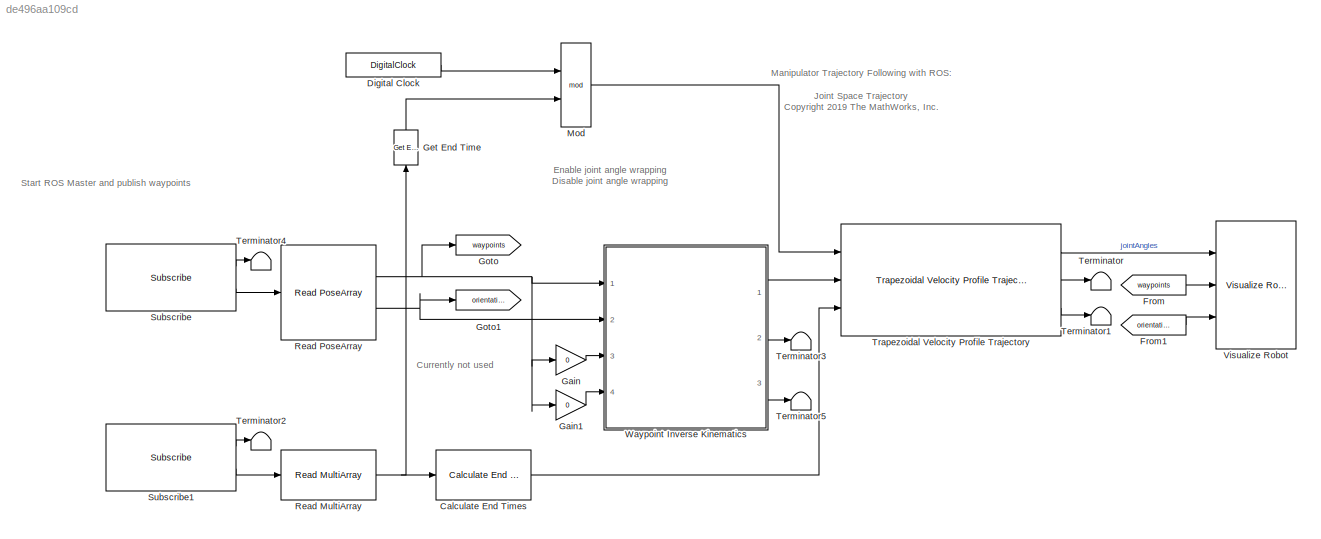
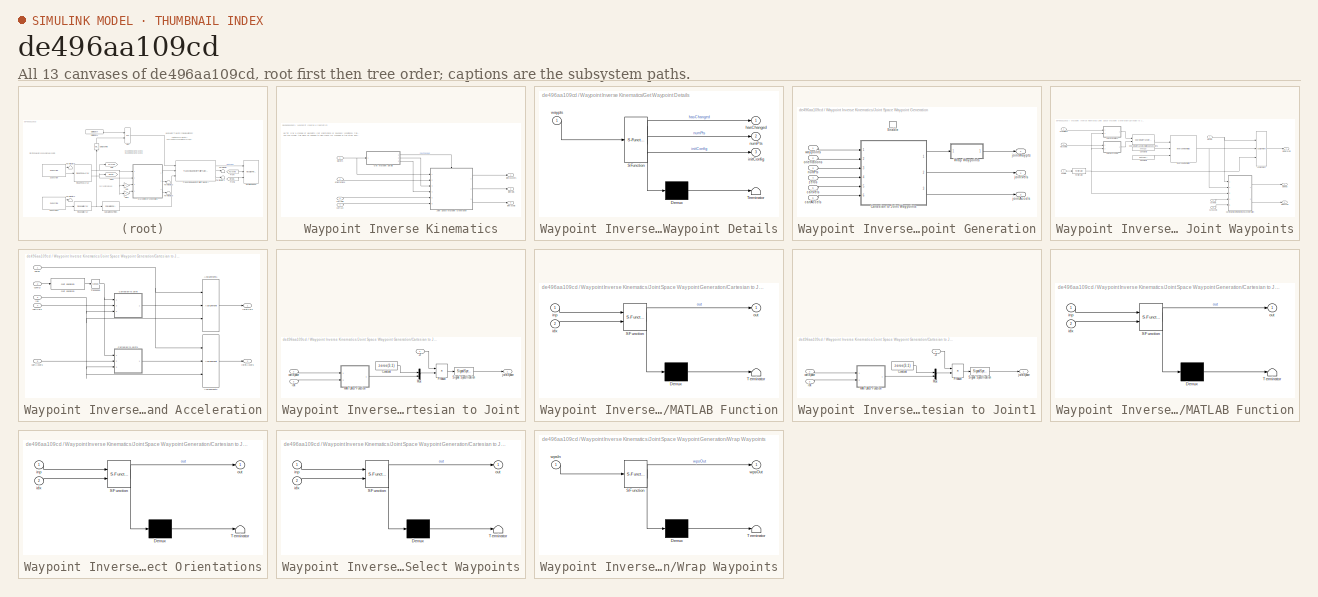
[diagram: thumbnail index - all 13 canvases of the model, root first then tree order]
MODEL slx_de496aa109cd
KIND model
CONFIG AbsTol = auto
CONFIG EnableMultiTasking = off
CONFIG FixedStep = auto
CONFIG MaxStep = auto
CONFIG MinStep = auto
CONFIG PreLoadFcn = createWaypointData;
CONFIG RelTol = 1e-3
CONFIG SampleTimeConstraint = Unconstrained
CONFIG Solver = FixedStepAuto
CONFIG SolverName = FixedStepAuto
CONFIG StartTime = 0.0
CONFIG StopTime = inf
BLOCK [Reference] Calculate End Times  REF=trajExampleUtils/Calculate End Times
  Ports = [1, 1]
  SourceBlock = trajExampleUtils/Calculate End Times
  SourceProductBaseCode = SL
  SourceProductName = Simulink
  SourceType = Calculate End Times
BLOCK [DigitalClock] Digital Clock
  SampleTime = ts
BLOCK [From] From
  GotoTag = waypoints
BLOCK [From] From1
  GotoTag = orientations
BLOCK [Gain] Gain
  Gain = 0
  OutDataTypeStr = Inherit: Inherit via internal rule
  ParamDataTypeStr = Inherit: Inherit via internal rule
  SaturateOnIntegerOverflow = off
BLOCK [Gain] Gain1
  Gain = 0
  OutDataTypeStr = Inherit: Inherit via internal rule
  ParamDataTypeStr = Inherit: Inherit via internal rule
  SaturateOnIntegerOverflow = off
BLOCK [Reference] Get End Time  REF=trajExampleUtils/Get End Time
  Ports = [1, 1]
  SourceBlock = trajExampleUtils/Get End Time
  SourceProductBaseCode = SL
  SourceProductName = Simulink
  SourceType = Get End Time
BLOCK [Goto] Goto
  GotoTag = waypoints
BLOCK [Goto] Goto1
  GotoTag = orientations
BLOCK [Math] Mod
  Operator = mod
  Ports = [2, 1]
BLOCK [Reference] Read MultiArray  REF=trajExampleUtils/Read MultiArray
  Ports = [1, 1]
  SourceBlock = trajExampleUtils/Read MultiArray
  SourceProductBaseCode = SL
  SourceProductName = Simulink
  SourceType = Read MultiArray
BLOCK [Reference] Read PoseArray  REF=trajExampleUtils/Read PoseArray
  Ports = [1, 2]
  SourceBlock = trajExampleUtils/Read PoseArray
  SourceType = Read PoseArray
BLOCK [Reference] Subscribe  REF=robotlib/Subscribe
  Ports = [0, 2]
  SourceBlock = robotlib/Subscribe
  SourceProductBaseCode = RO
  SourceProductName = Robotics System Toolbox
  SourceType = ROS Subscribe
BLOCK [Reference] Subscribe1  REF=robotlib/Subscribe
  Ports = [0, 2]
  SourceBlock = robotlib/Subscribe
  SourceProductBaseCode = RO
  SourceProductName = Robotics System Toolbox
  SourceType = ROS Subscribe
BLOCK [Terminator] Terminator
BLOCK [Terminator] Terminator1
BLOCK [Terminator] Terminator2
BLOCK [Terminator] Terminator3
BLOCK [Terminator] Terminator4
BLOCK [Terminator] Terminator5
BLOCK [Reference] Trapezoidal Velocity Profile Trajectory  REF=robotcorelib/Trapezoidal Velocity Profile Trajectory
  Ports = [3, 3]
  SourceBlock = robotcorelib/Trapezoidal Velocity Profile Trajectory
  SourceProductBaseCode = RO
  SourceProductName = Robotics System Toolbox
  SourceType = robotics.slcore.internal.block.TrapVelTrajSys
BLOCK [Reference] Visualize Robot  REF=trajExampleUtils/Visualize Robot
  Ports = [3]
  SourceBlock = trajExampleUtils/Visualize Robot
  SourceType = Visualize Robot
BLOCK [SubSystem] Waypoint Inverse Kinematics
  Ports = [4, 3]
  RequestExecContextInheritance = off
  TreatAsAtomicUnit = on
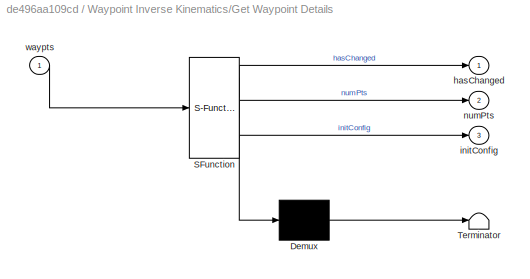
BLOCK [SubSystem] Waypoint Inverse Kinematics/Get Waypoint Details
  ErrorFcn = Stateflow.Translate.translate
  PermitHierarchicalResolution = ExplicitOnly
  Ports = [1, 3]
  RequestExecContextInheritance = off
  SFBlockType = MATLAB Function
  TreatAsAtomicUnit = on
BLOCK [Demux] Waypoint Inverse Kinematics/Get Waypoint Details/ Demux 
  Outputs = 1
  Ports = [1, 1]
BLOCK [S-Function] Waypoint Inverse Kinematics/Get Waypoint Details/ SFunction 
  EnableBusSupport = on
  FunctionName = sf_sfun
  Parameters = maxWaypoints,numJoints
  PortCounts = [1 4]
  Ports = [1, 4]
  SFcnIsStateOwnerBlock = off
  SFunctionDeploymentMode = off
  Tag = Stateflow S-Function rosManipJointTrajectory 13
BLOCK [Terminator] Waypoint Inverse Kinematics/Get Waypoint Details/ Terminator 
BLOCK [Outport] Waypoint Inverse Kinematics/Get Waypoint Details/hasChanged
  IconDisplay = Port number
BLOCK [Outport] Waypoint Inverse Kinematics/Get Waypoint Details/initConfig
  IconDisplay = Port number
  Port = 3
BLOCK [Outport] Waypoint Inverse Kinematics/Get Waypoint Details/numPts
  IconDisplay = Port number
  Port = 2
BLOCK [Inport] Waypoint Inverse Kinematics/Get Waypoint Details/waypts
  IconDisplay = Port number
BLOCK [SubSystem] Waypoint Inverse Kinematics/Joint Space Waypoint Generation
  Ports = [6, 3, 1]
  RequestExecContextInheritance = off
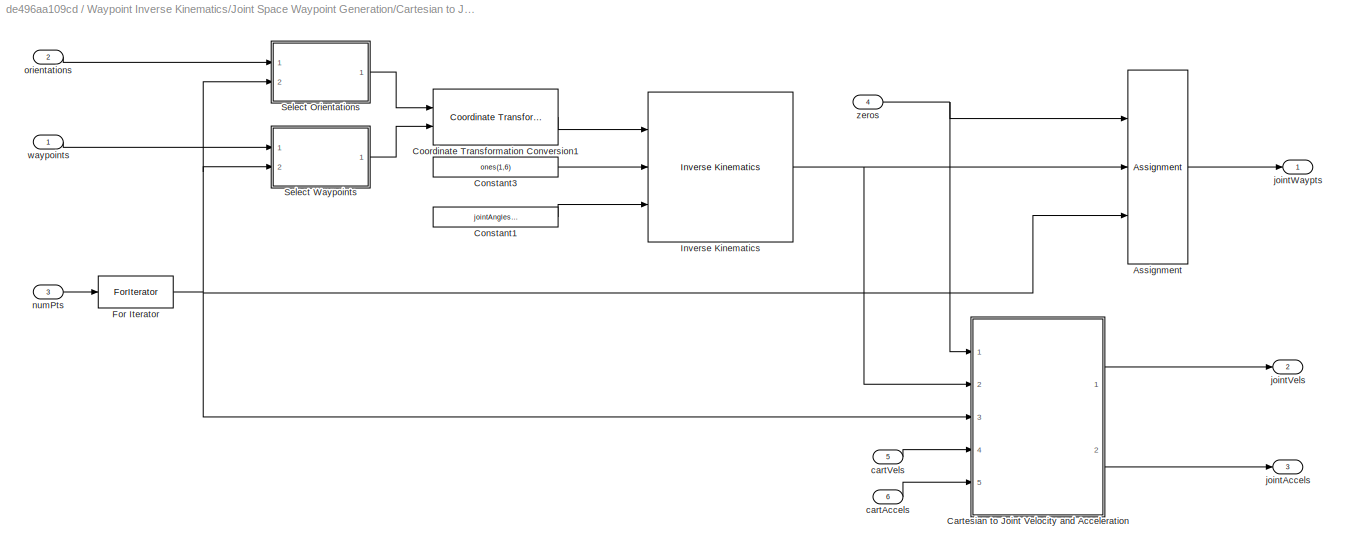
BLOCK [SubSystem] Waypoint Inverse Kinematics/Joint Space Waypoint Generation/Cartesian to Joint Waypoints
  Ports = [6, 3]
  RequestExecContextInheritance = off
BLOCK [Assignment] Waypoint Inverse Kinematics/Joint Space Waypoint Generation/Cartesian to Joint Waypoints/Assignment
  DiagnosticForDimensions = Warning
  IndexOptions = Index vector (dialog),Index vector (port)
  Indices = 1:numJoints,1
  NumberOfDimensions = 2
  OutputSizes = 10,20
  Ports = [3, 1]
BLOCK [SubSystem] Waypoint Inverse Kinematics/Joint Space Waypoint Generation/Cartesian to Joint Waypoints/Cartesian to Joint Velocity and Acceleration
  Ports = [5, 2]
  RequestExecContextInheritance = off
BLOCK [Assignment] Waypoint Inverse Kinematics/Joint Space Waypoint Generation/Cartesian to Joint Waypoints/Cartesian to Joint Velocity and Acceleration/Assignment1
  DiagnosticForDimensions = Warning
  IndexOptions = Index vector (dialog),Index vector (port)
  Indices = 1:numJoints,1
  NumberOfDimensions = 2
  OutputSizes = 10,20
  Ports = [3, 1]
BLOCK [Assignment] Waypoint Inverse Kinematics/Joint Space Waypoint Generation/Cartesian to Joint Waypoints/Cartesian to Joint Velocity and Acceleration/Assignment2
  DiagnosticForDimensions = Warning
  IndexOptions = Index vector (dialog),Index vector (port)
  Indices = 1:numJoints,1
  NumberOfDimensions = 2
  OutputSizes = 10,20
  Ports = [3, 1]
BLOCK [SubSystem] Waypoint Inverse Kinematics/Joint Space Waypoint Generation/Cartesian to Joint Waypoints/Cartesian to Joint Velocity and Acceleration/Cartesian to Joint
  Ports = [3, 1]
  RequestExecContextInheritance = off
BLOCK [Constant] Waypoint Inverse Kinematics/Joint Space Waypoint Generation/Cartesian to Joint Waypoints/Cartesian to Joint Velocity and Acceleration/Cartesian to Joint/Constant
  Value = zeros(3,1)
BLOCK [Inport] Waypoint Inverse Kinematics/Joint Space Waypoint Generation/Cartesian to Joint Waypoints/Cartesian to Joint Velocity and Acceleration/Cartesian to Joint/JT
  IconDisplay = Port number
BLOCK [SubSystem] Waypoint Inverse Kinematics/Joint Space Waypoint Generation/Cartesian to Joint Waypoints/Cartesian to Joint Velocity and Acceleration/Cartesian to Joint/MATLAB Function
  ErrorFcn = Stateflow.Translate.translate
  PermitHierarchicalResolution = ExplicitOnly
  Ports = [2, 1]
  RequestExecContextInheritance = off
  SFBlockType = MATLAB Function
  TreatAsAtomicUnit = on
BLOCK [Demux] Waypoint Inverse Kinematics/Joint Space Waypoint Generation/Cartesian to Joint Waypoints/Cartesian to Joint Velocity and Acceleration/Cartesian to Joint/MATLAB Function/ Demux 
  Outputs = 1
  Ports = [1, 1]
BLOCK [S-Function] Waypoint Inverse Kinematics/Joint Space Waypoint Generation/Cartesian to Joint Waypoints/Cartesian to Joint Velocity and Acceleration/Cartesian to Joint/MATLAB Function/ SFunction 
  EnableBusSupport = on
  FunctionName = sf_sfun
  PortCounts = [2 2]
  Ports = [2, 2]
  SFcnIsStateOwnerBlock = off
  SFunctionDeploymentMode = off
  Tag = Stateflow S-Function rosManipJointTrajectory 8
BLOCK [Terminator] Waypoint Inverse Kinematics/Joint Space Waypoint Generation/Cartesian to Joint Waypoints/Cartesian to Joint Velocity and Acceleration/Cartesian to Joint/MATLAB Function/ Terminator 
BLOCK [Inport] Waypoint Inverse Kinematics/Joint Space Waypoint Generation/Cartesian to Joint Waypoints/Cartesian to Joint Velocity and Acceleration/Cartesian to Joint/MATLAB Function/idx
  IconDisplay = Port number
  Port = 2
BLOCK [Inport] Waypoint Inverse Kinematics/Joint Space Waypoint Generation/Cartesian to Joint Waypoints/Cartesian to Joint Velocity and Acceleration/Cartesian to Joint/MATLAB Function/inp
  IconDisplay = Port number
BLOCK [Outport] Waypoint Inverse Kinematics/Joint Space Waypoint Generation/Cartesian to Joint Waypoints/Cartesian to Joint Velocity and Acceleration/Cartesian to Joint/MATLAB Function/out
  IconDisplay = Port number
BLOCK [Mux] Waypoint Inverse Kinematics/Joint Space Waypoint Generation/Cartesian to Joint Waypoints/Cartesian to Joint Velocity and Acceleration/Cartesian to Joint/Mux
  DisplayOption = bar
  Inputs = 2
  Ports = [2, 1]
BLOCK [Product] Waypoint Inverse Kinematics/Joint Space Waypoint Generation/Cartesian to Joint Waypoints/Cartesian to Joint Velocity and Acceleration/Cartesian to Joint/Product
  InputSameDT = off
  Multiplication = Matrix(*)
  OutDataTypeStr = Inherit: Inherit via internal rule
  Ports = [2, 1]
  RndMeth = Floor
  SaturateOnIntegerOverflow = off
BLOCK [SignalSpecification] Waypoint Inverse Kinematics/Joint Space Waypoint Generation/Cartesian to Joint Waypoints/Cartesian to Joint Velocity and Acceleration/Cartesian to Joint/Signal Specification
  Dimensions = [numJoints 1]
BLOCK [Inport] Waypoint Inverse Kinematics/Joint Space Waypoint Generation/Cartesian to Joint Waypoints/Cartesian to Joint Velocity and Acceleration/Cartesian to Joint/cartSpace
  IconDisplay = Port number
  Port = 2
BLOCK [Inport] Waypoint Inverse Kinematics/Joint Space Waypoint Generation/Cartesian to Joint Waypoints/Cartesian to Joint Velocity and Acceleration/Cartesian to Joint/idx
  IconDisplay = Port number
  Port = 3
BLOCK [Outport] Waypoint Inverse Kinematics/Joint Space Waypoint Generation/Cartesian to Joint Waypoints/Cartesian to Joint Velocity and Acceleration/Cartesian to Joint/jointSpace
  IconDisplay = Port number
BLOCK [SubSystem] Waypoint Inverse Kinematics/Joint Space Waypoint Generation/Cartesian to Joint Waypoints/Cartesian to Joint Velocity and Acceleration/Cartesian to Joint1
  Ports = [3, 1]
  RequestExecContextInheritance = off
BLOCK [Constant] Waypoint Inverse Kinematics/Joint Space Waypoint Generation/Cartesian to Joint Waypoints/Cartesian to Joint Velocity and Acceleration/Cartesian to Joint1/Constant
  Value = zeros(3,1)
BLOCK [Inport] Waypoint Inverse Kinematics/Joint Space Waypoint Generation/Cartesian to Joint Waypoints/Cartesian to Joint Velocity and Acceleration/Cartesian to Joint1/JT
  IconDisplay = Port number
BLOCK [SubSystem] Waypoint Inverse Kinematics/Joint Space Waypoint Generation/Cartesian to Joint Waypoints/Cartesian to Joint Velocity and Acceleration/Cartesian to Joint1/MATLAB Function
  ErrorFcn = Stateflow.Translate.translate
  PermitHierarchicalResolution = ExplicitOnly
  Ports = [2, 1]
  RequestExecContextInheritance = off
  SFBlockType = MATLAB Function
  TreatAsAtomicUnit = on
BLOCK [Demux] Waypoint Inverse Kinematics/Joint Space Waypoint Generation/Cartesian to Joint Waypoints/Cartesian to Joint Velocity and Acceleration/Cartesian to Joint1/MATLAB Function/ Demux 
  Outputs = 1
  Ports = [1, 1]
BLOCK [S-Function] Waypoint Inverse Kinematics/Joint Space Waypoint Generation/Cartesian to Joint Waypoints/Cartesian to Joint Velocity and Acceleration/Cartesian to Joint1/MATLAB Function/ SFunction 
  EnableBusSupport = on
  FunctionName = sf_sfun
  PortCounts = [2 2]
  Ports = [2, 2]
  SFcnIsStateOwnerBlock = off
  SFunctionDeploymentMode = off
  Tag = Stateflow S-Function rosManipJointTrajectory 9
BLOCK [Terminator] Waypoint Inverse Kinematics/Joint Space Waypoint Generation/Cartesian to Joint Waypoints/Cartesian to Joint Velocity and Acceleration/Cartesian to Joint1/MATLAB Function/ Terminator 
BLOCK [Inport] Waypoint Inverse Kinematics/Joint Space Waypoint Generation/Cartesian to Joint Waypoints/Cartesian to Joint Velocity and Acceleration/Cartesian to Joint1/MATLAB Function/idx
  IconDisplay = Port number
  Port = 2
BLOCK [Inport] Waypoint Inverse Kinematics/Joint Space Waypoint Generation/Cartesian to Joint Waypoints/Cartesian to Joint Velocity and Acceleration/Cartesian to Joint1/MATLAB Function/inp
  IconDisplay = Port number
BLOCK [Outport] Waypoint Inverse Kinematics/Joint Space Waypoint Generation/Cartesian to Joint Waypoints/Cartesian to Joint Velocity and Acceleration/Cartesian to Joint1/MATLAB Function/out
  IconDisplay = Port number
BLOCK [Mux] Waypoint Inverse Kinematics/Joint Space Waypoint Generation/Cartesian to Joint Waypoints/Cartesian to Joint Velocity and Acceleration/Cartesian to Joint1/Mux
  DisplayOption = bar
  Inputs = 2
  Ports = [2, 1]
BLOCK [Product] Waypoint Inverse Kinematics/Joint Space Waypoint Generation/Cartesian to Joint Waypoints/Cartesian to Joint Velocity and Acceleration/Cartesian to Joint1/Product
  InputSameDT = off
  Multiplication = Matrix(*)
  OutDataTypeStr = Inherit: Inherit via internal rule
  Ports = [2, 1]
  RndMeth = Floor
  SaturateOnIntegerOverflow = off
BLOCK [SignalSpecification] Waypoint Inverse Kinematics/Joint Space Waypoint Generation/Cartesian to Joint Waypoints/Cartesian to Joint Velocity and Acceleration/Cartesian to Joint1/Signal Specification
  Dimensions = [numJoints 1]
BLOCK [Inport] Waypoint Inverse Kinematics/Joint Space Waypoint Generation/Cartesian to Joint Waypoints/Cartesian to Joint Velocity and Acceleration/Cartesian to Joint1/cartSpace
  IconDisplay = Port number
  Port = 2
BLOCK [Inport] Waypoint Inverse Kinematics/Joint Space Waypoint Generation/Cartesian to Joint Waypoints/Cartesian to Joint Velocity and Acceleration/Cartesian to Joint1/idx
  IconDisplay = Port number
  Port = 3
BLOCK [Outport] Waypoint Inverse Kinematics/Joint Space Waypoint Generation/Cartesian to Joint Waypoints/Cartesian to Joint Velocity and Acceleration/Cartesian to Joint1/jointSpace
  IconDisplay = Port number
BLOCK [Reference] Waypoint Inverse Kinematics/Joint Space Waypoint Generation/Cartesian to Joint Waypoints/Cartesian to Joint Velocity and Acceleration/Get Jacobian  REF=robotmaniplib/Get Jacobian
  Ports = [1, 1]
  SourceBlock = robotmaniplib/Get Jacobian
  SourceProductBaseCode = RO
  SourceProductName = Robotics System Toolbox
  SourceType = Get Jacobian
BLOCK [Math] Waypoint Inverse Kinematics/Joint Space Waypoint Generation/Cartesian to Joint Waypoints/Cartesian to Joint Velocity and Acceleration/Transpose
  Operator = transpose
  Ports = [1, 1]
BLOCK [Inport] Waypoint Inverse Kinematics/Joint Space Waypoint Generation/Cartesian to Joint Waypoints/Cartesian to Joint Velocity and Acceleration/cartAccels
  IconDisplay = Port number
  Port = 5
BLOCK [Inport] Waypoint Inverse Kinematics/Joint Space Waypoint Generation/Cartesian to Joint Waypoints/Cartesian to Joint Velocity and Acceleration/cartVels
  IconDisplay = Port number
  Port = 4
BLOCK [Inport] Waypoint Inverse Kinematics/Joint Space Waypoint Generation/Cartesian to Joint Waypoints/Cartesian to Joint Velocity and Acceleration/config
  IconDisplay = Port number
  Port = 2
BLOCK [Inport] Waypoint Inverse Kinematics/Joint Space Waypoint Generation/Cartesian to Joint Waypoints/Cartesian to Joint Velocity and Acceleration/idx
  IconDisplay = Port number
  Port = 3
BLOCK [Outport] Waypoint Inverse Kinematics/Joint Space Waypoint Generation/Cartesian to Joint Waypoints/Cartesian to Joint Velocity and Acceleration/jointAccels
  IconDisplay = Port number
  Port = 2
BLOCK [Outport] Waypoint Inverse Kinematics/Joint Space Waypoint Generation/Cartesian to Joint Waypoints/Cartesian to Joint Velocity and Acceleration/jointVels
  IconDisplay = Port number
BLOCK [Inport] Waypoint Inverse Kinematics/Joint Space Waypoint Generation/Cartesian to Joint Waypoints/Cartesian to Joint Velocity and Acceleration/zeros
  IconDisplay = Port number
BLOCK [Constant] Waypoint Inverse Kinematics/Joint Space Waypoint Generation/Cartesian to Joint Waypoints/Constant1
  Value = jointAnglesHome
  VectorParams1D = off
BLOCK [Constant] Waypoint Inverse Kinematics/Joint Space Waypoint Generation/Cartesian to Joint Waypoints/Constant3
  Value = ones(1,6)
  VectorParams1D = off
BLOCK [Reference] Waypoint Inverse Kinematics/Joint Space Waypoint Generation/Cartesian to Joint Waypoints/Coordinate Transformation Conversion1  REF=robotcorelib/Coordinate Transformation Conversion
  Ports = [2, 1]
  SourceBlock = robotcorelib/Coordinate Transformation Conversion
  SourceProductBaseCode = RO
  SourceProductName = Robotics System Toolbox
  SourceType = robotics.slcore.internal.block.CoordinateTransformationConversion
BLOCK [ForIterator] Waypoint Inverse Kinematics/Joint Space Waypoint Generation/Cartesian to Joint Waypoints/For Iterator
  IterationSource = external
  Ports = [1, 1]
  ResetStates = reset
BLOCK [Reference] Waypoint Inverse Kinematics/Joint Space Waypoint Generation/Cartesian to Joint Waypoints/Inverse Kinematics  REF=robotmaniplib/Inverse Kinematics
  Ports = [3, 1]
  SourceBlock = robotmaniplib/Inverse Kinematics
  SourceProductBaseCode = RO
  SourceProductName = Robotics System Toolbox
  SourceType = Inverse Kinematics
BLOCK [SubSystem] Waypoint Inverse Kinematics/Joint Space Waypoint Generation/Cartesian to Joint Waypoints/Select Orientations
  ErrorFcn = Stateflow.Translate.translate
  PermitHierarchicalResolution = ExplicitOnly
  Ports = [2, 1]
  RequestExecContextInheritance = off
  SFBlockType = MATLAB Function
  TreatAsAtomicUnit = on
BLOCK [Demux] Waypoint Inverse Kinematics/Joint Space Waypoint Generation/Cartesian to Joint Waypoints/Select Orientations/ Demux 
  Outputs = 1
  Ports = [1, 1]
BLOCK [S-Function] Waypoint Inverse Kinematics/Joint Space Waypoint Generation/Cartesian to Joint Waypoints/Select Orientations/ SFunction 
  EnableBusSupport = on
  FunctionName = sf_sfun
  PortCounts = [2 2]
  Ports = [2, 2]
  SFcnIsStateOwnerBlock = off
  SFunctionDeploymentMode = off
  Tag = Stateflow S-Function rosManipJointTrajectory 11
BLOCK [Terminator] Waypoint Inverse Kinematics/Joint Space Waypoint Generation/Cartesian to Joint Waypoints/Select Orientations/ Terminator 
BLOCK [Inport] Waypoint Inverse Kinematics/Joint Space Waypoint Generation/Cartesian to Joint Waypoints/Select Orientations/idx
  IconDisplay = Port number
  Port = 2
BLOCK [Inport] Waypoint Inverse Kinematics/Joint Space Waypoint Generation/Cartesian to Joint Waypoints/Select Orientations/inp
  IconDisplay = Port number
BLOCK [Outport] Waypoint Inverse Kinematics/Joint Space Waypoint Generation/Cartesian to Joint Waypoints/Select Orientations/out
  IconDisplay = Port number
BLOCK [SubSystem] Waypoint Inverse Kinematics/Joint Space Waypoint Generation/Cartesian to Joint Waypoints/Select Waypoints
  ErrorFcn = Stateflow.Translate.translate
  PermitHierarchicalResolution = ExplicitOnly
  Ports = [2, 1]
  RequestExecContextInheritance = off
  SFBlockType = MATLAB Function
  TreatAsAtomicUnit = on
BLOCK [Demux] Waypoint Inverse Kinematics/Joint Space Waypoint Generation/Cartesian to Joint Waypoints/Select Waypoints/ Demux 
  Outputs = 1
  Ports = [1, 1]
BLOCK [S-Function] Waypoint Inverse Kinematics/Joint Space Waypoint Generation/Cartesian to Joint Waypoints/Select Waypoints/ SFunction 
  EnableBusSupport = on
  FunctionName = sf_sfun
  PortCounts = [2 2]
  Ports = [2, 2]
  SFcnIsStateOwnerBlock = off
  SFunctionDeploymentMode = off
  Tag = Stateflow S-Function rosManipJointTrajectory 10
BLOCK [Terminator] Waypoint Inverse Kinematics/Joint Space Waypoint Generation/Cartesian to Joint Waypoints/Select Waypoints/ Terminator 
BLOCK [Inport] Waypoint Inverse Kinematics/Joint Space Waypoint Generation/Cartesian to Joint Waypoints/Select Waypoints/idx
  IconDisplay = Port number
  Port = 2
BLOCK [Inport] Waypoint Inverse Kinematics/Joint Space Waypoint Generation/Cartesian to Joint Waypoints/Select Waypoints/inp
  IconDisplay = Port number
BLOCK [Outport] Waypoint Inverse Kinematics/Joint Space Waypoint Generation/Cartesian to Joint Waypoints/Select Waypoints/out
  IconDisplay = Port number
BLOCK [Inport] Waypoint Inverse Kinematics/Joint Space Waypoint Generation/Cartesian to Joint Waypoints/cartAccels
  IconDisplay = Port number
  Port = 6
BLOCK [Inport] Waypoint Inverse Kinematics/Joint Space Waypoint Generation/Cartesian to Joint Waypoints/cartVels
  IconDisplay = Port number
  Port = 5
BLOCK [Outport] Waypoint Inverse Kinematics/Joint Space Waypoint Generation/Cartesian to Joint Waypoints/jointAccels
  IconDisplay = Port number
  Port = 3
BLOCK [Outport] Waypoint Inverse Kinematics/Joint Space Waypoint Generation/Cartesian to Joint Waypoints/jointVels
  IconDisplay = Port number
  Port = 2
BLOCK [Outport] Waypoint Inverse Kinematics/Joint Space Waypoint Generation/Cartesian to Joint Waypoints/jointWaypts
  IconDisplay = Port number
BLOCK [Inport] Waypoint Inverse Kinematics/Joint Space Waypoint Generation/Cartesian to Joint Waypoints/numPts
  IconDisplay = Port number
  Port = 3
BLOCK [Inport] Waypoint Inverse Kinematics/Joint Space Waypoint Generation/Cartesian to Joint Waypoints/orientations
  IconDisplay = Port number
  Port = 2
BLOCK [Inport] Waypoint Inverse Kinematics/Joint Space Waypoint Generation/Cartesian to Joint Waypoints/waypoints
  IconDisplay = Port number
BLOCK [Inport] Waypoint Inverse Kinematics/Joint Space Waypoint Generation/Cartesian to Joint Waypoints/zeros
  IconDisplay = Port number
  Port = 4
BLOCK [EnablePort] Waypoint Inverse Kinematics/Joint Space Waypoint Generation/Enable
  Ports = []
  PropagateVarSize = During execution
BLOCK [SubSystem] Waypoint Inverse Kinematics/Joint Space Waypoint Generation/Wrap Waypoints
  ErrorFcn = Stateflow.Translate.translate
  PermitHierarchicalResolution = ExplicitOnly
  Ports = [1, 1]
  RequestExecContextInheritance = off
  SFBlockType = MATLAB Function
  TreatAsAtomicUnit = on
BLOCK [Demux] Waypoint Inverse Kinematics/Joint Space Waypoint Generation/Wrap Waypoints/ Demux 
  Outputs = 1
  Ports = [1, 1]
BLOCK [S-Function] Waypoint Inverse Kinematics/Joint Space Waypoint Generation/Wrap Waypoints/ SFunction 
  EnableBusSupport = on
  FunctionName = sf_sfun
  PortCounts = [1 2]
  Ports = [1, 2]
  SFcnIsStateOwnerBlock = off
  SFunctionDeploymentMode = off
  Tag = Stateflow S-Function rosManipJointTrajectory 2
BLOCK [Terminator] Waypoint Inverse Kinematics/Joint Space Waypoint Generation/Wrap Waypoints/ Terminator 
BLOCK [Inport] Waypoint Inverse Kinematics/Joint Space Waypoint Generation/Wrap Waypoints/wpsIn
  IconDisplay = Port number
BLOCK [Outport] Waypoint Inverse Kinematics/Joint Space Waypoint Generation/Wrap Waypoints/wpsOut
  IconDisplay = Port number
BLOCK [Inport] Waypoint Inverse Kinematics/Joint Space Waypoint Generation/cartAccels
  IconDisplay = Port number
  Port = 6
BLOCK [Inport] Waypoint Inverse Kinematics/Joint Space Waypoint Generation/cartVels
  IconDisplay = Port number
  Port = 5
BLOCK [Outport] Waypoint Inverse Kinematics/Joint Space Waypoint Generation/jointAccels
  IconDisplay = Port number
  Port = 3
BLOCK [Outport] Waypoint Inverse Kinematics/Joint Space Waypoint Generation/jointVels
  IconDisplay = Port number
  Port = 2
BLOCK [Outport] Waypoint Inverse Kinematics/Joint Space Waypoint Generation/jointWaypts
  IconDisplay = Port number
BLOCK [Inport] Waypoint Inverse Kinematics/Joint Space Waypoint Generation/numPts
  IconDisplay = Port number
  Port = 3
BLOCK [Inport] Waypoint Inverse Kinematics/Joint Space Waypoint Generation/orientations
  IconDisplay = Port number
  Port = 2
BLOCK [Inport] Waypoint Inverse Kinematics/Joint Space Waypoint Generation/waypoints
  IconDisplay = Port number
BLOCK [Inport] Waypoint Inverse Kinematics/Joint Space Waypoint Generation/zeros
  IconDisplay = Port number
  Port = 4
BLOCK [Inport] Waypoint Inverse Kinematics/cartAcc
  IconDisplay = Port number
  Port = 4
BLOCK [Inport] Waypoint Inverse Kinematics/cartVels
  IconDisplay = Port number
  Port = 3
BLOCK [Outport] Waypoint Inverse Kinematics/jointAccels
  IconDisplay = Port number
  Port = 3
  PortDimensions = [numJoints maxWaypoints]
  VarSizeSig = Yes
BLOCK [Outport] Waypoint Inverse Kinematics/jointVels
  IconDisplay = Port number
  Port = 2
  PortDimensions = [numJoints maxWaypoints]
  VarSizeSig = Yes
BLOCK [Outport] Waypoint Inverse Kinematics/jointWaypts
  IconDisplay = Port number
  PortDimensions = [numJoints maxWaypoints]
  VarSizeSig = Yes
BLOCK [Inport] Waypoint Inverse Kinematics/orientations
  IconDisplay = Port number
  Port = 2
BLOCK [Inport] Waypoint Inverse Kinematics/waypts
  IconDisplay = Port number
ANNOTATION (root): Enable joint angle wrapping Disable joint angle wrapping
ANNOTATION (root): Start ROS Master and publish waypoints
ANNOTATION (root): Manipulator Trajectory Following with ROS: Joint Space Trajectory <copyright redacted>
ANNOTATION (root): Currently not used
ANNOTATION Waypoint Inverse Kinematics: NOTE: Only a change of waypoints (not orientations or boundary conditions) triggers a trajectory recompute. You can modify this block as needed to also check for changes in the other input values.
LINE Calculate End Times:1 -> Trapezoidal Velocity Profile Trajectory:3
LINE Digital Clock:1 -> Mod:1
LINE From1:1 -> Visualize Robot:3
LINE From:1 -> Visualize Robot:2
LINE Gain1:1 -> Waypoint Inverse Kinematics:4
LINE Gain:1 -> Waypoint Inverse Kinematics:3
LINE Get End Time:1 -> Mod:2
LINE Mod:1 -> Trapezoidal Velocity Profile Trajectory:1
NET Read MultiArray:1 -> Calculate End Times:1, Get End Time:1
NET Read PoseArray:1 -> Gain1:1, Gain:1, Goto:1, Waypoint Inverse Kinematics:1
NET Read PoseArray:2 -> Goto1:1, Waypoint Inverse Kinematics:2
LINE Subscribe1:1 -> Terminator2:1
LINE Subscribe1:2 -> Read MultiArray:1
LINE Subscribe:1 -> Terminator4:1
LINE Subscribe:2 -> Read PoseArray:1
LINE Trapezoidal Velocity Profile Trajectory:1 -> Visualize Robot:1
LINE Trapezoidal Velocity Profile Trajectory:2 -> Terminator:1
LINE Trapezoidal Velocity Profile Trajectory:3 -> Terminator1:1
LINE Waypoint Inverse Kinematics/Get Waypoint Details:1 -> Waypoint Inverse Kinematics/Joint Space Waypoint Generation:enable
LINE Waypoint Inverse Kinematics/Get Waypoint Details:2 -> Waypoint Inverse Kinematics/Joint Space Waypoint Generation:3
LINE Waypoint Inverse Kinematics/Get Waypoint Details:3 -> Waypoint Inverse Kinematics/Joint Space Waypoint Generation:4
LINE Waypoint Inverse Kinematics/Joint Space Waypoint Generation/Cartesian to Joint Waypoints/Assignment:1 -> Waypoint Inverse Kinematics/Joint Space Waypoint Generation/Cartesian to Joint Waypoints/jointWaypts:1
LINE Waypoint Inverse Kinematics/Joint Space Waypoint Generation/Cartesian to Joint Waypoints/Cartesian to Joint Velocity and Acceleration/Assignment1:1 -> Waypoint Inverse Kinematics/Joint Space Waypoint Generation/Cartesian to Joint Waypoints/Cartesian to Joint Velocity and Acceleration/jointVels:1
LINE Waypoint Inverse Kinematics/Joint Space Waypoint Generation/Cartesian to Joint Waypoints/Cartesian to Joint Velocity and Acceleration/Assignment2:1 -> Waypoint Inverse Kinematics/Joint Space Waypoint Generation/Cartesian to Joint Waypoints/Cartesian to Joint Velocity and Acceleration/jointAccels:1
LINE Waypoint Inverse Kinematics/Joint Space Waypoint Generation/Cartesian to Joint Waypoints/Cartesian to Joint Velocity and Acceleration/Cartesian to Joint/Constant:1 -> Waypoint Inverse Kinematics/Joint Space Waypoint Generation/Cartesian to Joint Waypoints/Cartesian to Joint Velocity and Acceleration/Cartesian to Joint/Mux:1
LINE Waypoint Inverse Kinematics/Joint Space Waypoint Generation/Cartesian to Joint Waypoints/Cartesian to Joint Velocity and Acceleration/Cartesian to Joint/JT:1 -> Waypoint Inverse Kinematics/Joint Space Waypoint Generation/Cartesian to Joint Waypoints/Cartesian to Joint Velocity and Acceleration/Cartesian to Joint/Product:1
LINE Waypoint Inverse Kinematics/Joint Space Waypoint Generation/Cartesian to Joint Waypoints/Cartesian to Joint Velocity and Acceleration/Cartesian to Joint/MATLAB Function:1 -> Waypoint Inverse Kinematics/Joint Space Waypoint Generation/Cartesian to Joint Waypoints/Cartesian to Joint Velocity and Acceleration/Cartesian to Joint/Mux:2
LINE Waypoint Inverse Kinematics/Joint Space Waypoint Generation/Cartesian to Joint Waypoints/Cartesian to Joint Velocity and Acceleration/Cartesian to Joint/Mux:1 -> Waypoint Inverse Kinematics/Joint Space Waypoint Generation/Cartesian to Joint Waypoints/Cartesian to Joint Velocity and Acceleration/Cartesian to Joint/Product:2
LINE Waypoint Inverse Kinematics/Joint Space Waypoint Generation/Cartesian to Joint Waypoints/Cartesian to Joint Velocity and Acceleration/Cartesian to Joint/Product:1 -> Waypoint Inverse Kinematics/Joint Space Waypoint Generation/Cartesian to Joint Waypoints/Cartesian to Joint Velocity and Acceleration/Cartesian to Joint/Signal Specification:1
LINE Waypoint Inverse Kinematics/Joint Space Waypoint Generation/Cartesian to Joint Waypoints/Cartesian to Joint Velocity and Acceleration/Cartesian to Joint/Signal Specification:1 -> Waypoint Inverse Kinematics/Joint Space Waypoint Generation/Cartesian to Joint Waypoints/Cartesian to Joint Velocity and Acceleration/Cartesian to Joint/jointSpace:1
LINE Waypoint Inverse Kinematics/Joint Space Waypoint Generation/Cartesian to Joint Waypoints/Cartesian to Joint Velocity and Acceleration/Cartesian to Joint/cartSpace:1 -> Waypoint Inverse Kinematics/Joint Space Waypoint Generation/Cartesian to Joint Waypoints/Cartesian to Joint Velocity and Acceleration/Cartesian to Joint/MATLAB Function:1
LINE Waypoint Inverse Kinematics/Joint Space Waypoint Generation/Cartesian to Joint Waypoints/Cartesian to Joint Velocity and Acceleration/Cartesian to Joint/idx:1 -> Waypoint Inverse Kinematics/Joint Space Waypoint Generation/Cartesian to Joint Waypoints/Cartesian to Joint Velocity and Acceleration/Cartesian to Joint/MATLAB Function:2
LINE Waypoint Inverse Kinematics/Joint Space Waypoint Generation/Cartesian to Joint Waypoints/Cartesian to Joint Velocity and Acceleration/Cartesian to Joint1/Constant:1 -> Waypoint Inverse Kinematics/Joint Space Waypoint Generation/Cartesian to Joint Waypoints/Cartesian to Joint Velocity and Acceleration/Cartesian to Joint1/Mux:1
LINE Waypoint Inverse Kinematics/Joint Space Waypoint Generation/Cartesian to Joint Waypoints/Cartesian to Joint Velocity and Acceleration/Cartesian to Joint1/JT:1 -> Waypoint Inverse Kinematics/Joint Space Waypoint Generation/Cartesian to Joint Waypoints/Cartesian to Joint Velocity and Acceleration/Cartesian to Joint1/Product:1
LINE Waypoint Inverse Kinematics/Joint Space Waypoint Generation/Cartesian to Joint Waypoints/Cartesian to Joint Velocity and Acceleration/Cartesian to Joint1/MATLAB Function:1 -> Waypoint Inverse Kinematics/Joint Space Waypoint Generation/Cartesian to Joint Waypoints/Cartesian to Joint Velocity and Acceleration/Cartesian to Joint1/Mux:2
LINE Waypoint Inverse Kinematics/Joint Space Waypoint Generation/Cartesian to Joint Waypoints/Cartesian to Joint Velocity and Acceleration/Cartesian to Joint1/Mux:1 -> Waypoint Inverse Kinematics/Joint Space Waypoint Generation/Cartesian to Joint Waypoints/Cartesian to Joint Velocity and Acceleration/Cartesian to Joint1/Product:2
LINE Waypoint Inverse Kinematics/Joint Space Waypoint Generation/Cartesian to Joint Waypoints/Cartesian to Joint Velocity and Acceleration/Cartesian to Joint1/Product:1 -> Waypoint Inverse Kinematics/Joint Space Waypoint Generation/Cartesian to Joint Waypoints/Cartesian to Joint Velocity and Acceleration/Cartesian to Joint1/Signal Specification:1
LINE Waypoint Inverse Kinematics/Joint Space Waypoint Generation/Cartesian to Joint Waypoints/Cartesian to Joint Velocity and Acceleration/Cartesian to Joint1/Signal Specification:1 -> Waypoint Inverse Kinematics/Joint Space Waypoint Generation/Cartesian to Joint Waypoints/Cartesian to Joint Velocity and Acceleration/Cartesian to Joint1/jointSpace:1
LINE Waypoint Inverse Kinematics/Joint Space Waypoint Generation/Cartesian to Joint Waypoints/Cartesian to Joint Velocity and Acceleration/Cartesian to Joint1/cartSpace:1 -> Waypoint Inverse Kinematics/Joint Space Waypoint Generation/Cartesian to Joint Waypoints/Cartesian to Joint Velocity and Acceleration/Cartesian to Joint1/MATLAB Function:1
LINE Waypoint Inverse Kinematics/Joint Space Waypoint Generation/Cartesian to Joint Waypoints/Cartesian to Joint Velocity and Acceleration/Cartesian to Joint1/idx:1 -> Waypoint Inverse Kinematics/Joint Space Waypoint Generation/Cartesian to Joint Waypoints/Cartesian to Joint Velocity and Acceleration/Cartesian to Joint1/MATLAB Function:2
LINE Waypoint Inverse Kinematics/Joint Space Waypoint Generation/Cartesian to Joint Waypoints/Cartesian to Joint Velocity and Acceleration/Cartesian to Joint1:1 -> Waypoint Inverse Kinematics/Joint Space Waypoint Generation/Cartesian to Joint Waypoints/Cartesian to Joint Velocity and Acceleration/Assignment2:2
LINE Waypoint Inverse Kinematics/Joint Space Waypoint Generation/Cartesian to Joint Waypoints/Cartesian to Joint Velocity and Acceleration/Cartesian to Joint:1 -> Waypoint Inverse Kinematics/Joint Space Waypoint Generation/Cartesian to Joint Waypoints/Cartesian to Joint Velocity and Acceleration/Assignment1:2
LINE Waypoint Inverse Kinematics/Joint Space Waypoint Generation/Cartesian to Joint Waypoints/Cartesian to Joint Velocity and Acceleration/Get Jacobian:1 -> Waypoint Inverse Kinematics/Joint Space Waypoint Generation/Cartesian to Joint Waypoints/Cartesian to Joint Velocity and Acceleration/Transpose:1
NET Waypoint Inverse Kinematics/Joint Space Waypoint Generation/Cartesian to Joint Waypoints/Cartesian to Joint Velocity and Acceleration/Transpose:1 -> Waypoint Inverse Kinematics/Joint Space Waypoint Generation/Cartesian to Joint Waypoints/Cartesian to Joint Velocity and Acceleration/Cartesian to Joint1:1, Waypoint Inverse Kinematics/Joint Space Waypoint Generation/Cartesian to Joint Waypoints/Cartesian to Joint Velocity and Acceleration/Cartesian to Joint:1
LINE Waypoint Inverse Kinematics/Joint Space Waypoint Generation/Cartesian to Joint Waypoints/Cartesian to Joint Velocity and Acceleration/cartAccels:1 -> Waypoint Inverse Kinematics/Joint Space Waypoint Generation/Cartesian to Joint Waypoints/Cartesian to Joint Velocity and Acceleration/Cartesian to Joint1:2
LINE Waypoint Inverse Kinematics/Joint Space Waypoint Generation/Cartesian to Joint Waypoints/Cartesian to Joint Velocity and Acceleration/cartVels:1 -> Waypoint Inverse Kinematics/Joint Space Waypoint Generation/Cartesian to Joint Waypoints/Cartesian to Joint Velocity and Acceleration/Cartesian to Joint:2
LINE Waypoint Inverse Kinematics/Joint Space Waypoint Generation/Cartesian to Joint Waypoints/Cartesian to Joint Velocity and Acceleration/config:1 -> Waypoint Inverse Kinematics/Joint Space Waypoint Generation/Cartesian to Joint Waypoints/Cartesian to Joint Velocity and Acceleration/Get Jacobian:1
NET Waypoint Inverse Kinematics/Joint Space Waypoint Generation/Cartesian to Joint Waypoints/Cartesian to Joint Velocity and Acceleration/idx:1 -> Waypoint Inverse Kinematics/Joint Space Waypoint Generation/Cartesian to Joint Waypoints/Cartesian to Joint Velocity and Acceleration/Assignment1:3, Waypoint Inverse Kinematics/Joint Space Waypoint Generation/Cartesian to Joint Waypoints/Cartesian to Joint Velocity and Acceleration/Assignment2:3, Waypoint Inverse Kinematics/Joint Space Waypoint Generation/Cartesian to Joint Waypoints/Cartesian to Joint Velocity and Acceleration/Cartesian to Joint1:3, Waypoint Inverse Kinematics/Joint Space Waypoint Generation/Cartesian to Joint Waypoints/Cartesian to Joint Velocity and Acceleration/Cartesian to Joint:3
NET Waypoint Inverse Kinematics/Joint Space Waypoint Generation/Cartesian to Joint Waypoints/Cartesian to Joint Velocity and Acceleration/zeros:1 -> Waypoint Inverse Kinematics/Joint Space Waypoint Generation/Cartesian to Joint Waypoints/Cartesian to Joint Velocity and Acceleration/Assignment1:1, Waypoint Inverse Kinematics/Joint Space Waypoint Generation/Cartesian to Joint Waypoints/Cartesian to Joint Velocity and Acceleration/Assignment2:1
LINE Waypoint Inverse Kinematics/Joint Space Waypoint Generation/Cartesian to Joint Waypoints/Cartesian to Joint Velocity and Acceleration:1 -> Waypoint Inverse Kinematics/Joint Space Waypoint Generation/Cartesian to Joint Waypoints/jointVels:1
LINE Waypoint Inverse Kinematics/Joint Space Waypoint Generation/Cartesian to Joint Waypoints/Cartesian to Joint Velocity and Acceleration:2 -> Waypoint Inverse Kinematics/Joint Space Waypoint Generation/Cartesian to Joint Waypoints/jointAccels:1
LINE Waypoint Inverse Kinematics/Joint Space Waypoint Generation/Cartesian to Joint Waypoints/Constant1:1 -> Waypoint Inverse Kinematics/Joint Space Waypoint Generation/Cartesian to Joint Waypoints/Inverse Kinematics:3
LINE Waypoint Inverse Kinematics/Joint Space Waypoint Generation/Cartesian to Joint Waypoints/Constant3:1 -> Waypoint Inverse Kinematics/Joint Space Waypoint Generation/Cartesian to Joint Waypoints/Inverse Kinematics:2
LINE Waypoint Inverse Kinematics/Joint Space Waypoint Generation/Cartesian to Joint Waypoints/Coordinate Transformation Conversion1:1 -> Waypoint Inverse Kinematics/Joint Space Waypoint Generation/Cartesian to Joint Waypoints/Inverse Kinematics:1
NET Waypoint Inverse Kinematics/Joint Space Waypoint Generation/Cartesian to Joint Waypoints/For Iterator:1 -> Waypoint Inverse Kinematics/Joint Space Waypoint Generation/Cartesian to Joint Waypoints/Assignment:3, Waypoint Inverse Kinematics/Joint Space Waypoint Generation/Cartesian to Joint Waypoints/Cartesian to Joint Velocity and Acceleration:3, Waypoint Inverse Kinematics/Joint Space Waypoint Generation/Cartesian to Joint Waypoints/Select Orientations:2, Waypoint Inverse Kinematics/Joint Space Waypoint Generation/Cartesian to Joint Waypoints/Select Waypoints:2
NET Waypoint Inverse Kinematics/Joint Space Waypoint Generation/Cartesian to Joint Waypoints/Inverse Kinematics:1 -> Waypoint Inverse Kinematics/Joint Space Waypoint Generation/Cartesian to Joint Waypoints/Assignment:2, Waypoint Inverse Kinematics/Joint Space Waypoint Generation/Cartesian to Joint Waypoints/Cartesian to Joint Velocity and Acceleration:2
LINE Waypoint Inverse Kinematics/Joint Space Waypoint Generation/Cartesian to Joint Waypoints/Select Orientations:1 -> Waypoint Inverse Kinematics/Joint Space Waypoint Generation/Cartesian to Joint Waypoints/Coordinate Transformation Conversion1:1
LINE Waypoint Inverse Kinematics/Joint Space Waypoint Generation/Cartesian to Joint Waypoints/Select Waypoints:1 -> Waypoint Inverse Kinematics/Joint Space Waypoint Generation/Cartesian to Joint Waypoints/Coordinate Transformation Conversion1:2
LINE Waypoint Inverse Kinematics/Joint Space Waypoint Generation/Cartesian to Joint Waypoints/cartAccels:1 -> Waypoint Inverse Kinematics/Joint Space Waypoint Generation/Cartesian to Joint Waypoints/Cartesian to Joint Velocity and Acceleration:5
LINE Waypoint Inverse Kinematics/Joint Space Waypoint Generation/Cartesian to Joint Waypoints/cartVels:1 -> Waypoint Inverse Kinematics/Joint Space Waypoint Generation/Cartesian to Joint Waypoints/Cartesian to Joint Velocity and Acceleration:4
LINE Waypoint Inverse Kinematics/Joint Space Waypoint Generation/Cartesian to Joint Waypoints/numPts:1 -> Waypoint Inverse Kinematics/Joint Space Waypoint Generation/Cartesian to Joint Waypoints/For Iterator:1
LINE Waypoint Inverse Kinematics/Joint Space Waypoint Generation/Cartesian to Joint Waypoints/orientations:1 -> Waypoint Inverse Kinematics/Joint Space Waypoint Generation/Cartesian to Joint Waypoints/Select Orientations:1
LINE Waypoint Inverse Kinematics/Joint Space Waypoint Generation/Cartesian to Joint Waypoints/waypoints:1 -> Waypoint Inverse Kinematics/Joint Space Waypoint Generation/Cartesian to Joint Waypoints/Select Waypoints:1
NET Waypoint Inverse Kinematics/Joint Space Waypoint Generation/Cartesian to Joint Waypoints/zeros:1 -> Waypoint Inverse Kinematics/Joint Space Waypoint Generation/Cartesian to Joint Waypoints/Assignment:1, Waypoint Inverse Kinematics/Joint Space Waypoint Generation/Cartesian to Joint Waypoints/Cartesian to Joint Velocity and Acceleration:1
LINE Waypoint Inverse Kinematics/Joint Space Waypoint Generation/Cartesian to Joint Waypoints:1 -> Waypoint Inverse Kinematics/Joint Space Waypoint Generation/Wrap Waypoints:1
LINE Waypoint Inverse Kinematics/Joint Space Waypoint Generation/Cartesian to Joint Waypoints:2 -> Waypoint Inverse Kinematics/Joint Space Waypoint Generation/jointVels:1
LINE Waypoint Inverse Kinematics/Joint Space Waypoint Generation/Cartesian to Joint Waypoints:3 -> Waypoint Inverse Kinematics/Joint Space Waypoint Generation/jointAccels:1
LINE Waypoint Inverse Kinematics/Joint Space Waypoint Generation/Wrap Waypoints:1 -> Waypoint Inverse Kinematics/Joint Space Waypoint Generation/jointWaypts:1
LINE Waypoint Inverse Kinematics/Joint Space Waypoint Generation/cartAccels:1 -> Waypoint Inverse Kinematics/Joint Space Waypoint Generation/Cartesian to Joint Waypoints:6
LINE Waypoint Inverse Kinematics/Joint Space Waypoint Generation/cartVels:1 -> Waypoint Inverse Kinematics/Joint Space Waypoint Generation/Cartesian to Joint Waypoints:5
LINE Waypoint Inverse Kinematics/Joint Space Waypoint Generation/numPts:1 -> Waypoint Inverse Kinematics/Joint Space Waypoint Generation/Cartesian to Joint Waypoints:3
LINE Waypoint Inverse Kinematics/Joint Space Waypoint Generation/orientations:1 -> Waypoint Inverse Kinematics/Joint Space Waypoint Generation/Cartesian to Joint Waypoints:2
LINE Waypoint Inverse Kinematics/Joint Space Waypoint Generation/waypoints:1 -> Waypoint Inverse Kinematics/Joint Space Waypoint Generation/Cartesian to Joint Waypoints:1
LINE Waypoint Inverse Kinematics/Joint Space Waypoint Generation/zeros:1 -> Waypoint Inverse Kinematics/Joint Space Waypoint Generation/Cartesian to Joint Waypoints:4
LINE Waypoint Inverse Kinematics/Joint Space Waypoint Generation:1 -> Waypoint Inverse Kinematics/jointWaypts:1
LINE Waypoint Inverse Kinematics/Joint Space Waypoint Generation:2 -> Waypoint Inverse Kinematics/jointVels:1
LINE Waypoint Inverse Kinematics/Joint Space Waypoint Generation:3 -> Waypoint Inverse Kinematics/jointAccels:1
LINE Waypoint Inverse Kinematics/cartAcc:1 -> Waypoint Inverse Kinematics/Joint Space Waypoint Generation:6
LINE Waypoint Inverse Kinematics/cartVels:1 -> Waypoint Inverse Kinematics/Joint Space Waypoint Generation:5
LINE Waypoint Inverse Kinematics/orientations:1 -> Waypoint Inverse Kinematics/Joint Space Waypoint Generation:2
NET Waypoint Inverse Kinematics/waypts:1 -> Waypoint Inverse Kinematics/Get Waypoint Details:1, Waypoint Inverse Kinematics/Joint Space Waypoint Generation:1
LINE Waypoint Inverse Kinematics:1 -> Trapezoidal Velocity Profile Trajectory:2
LINE Waypoint Inverse Kinematics:2 -> Terminator3:1
LINE Waypoint Inverse Kinematics:3 -> Terminator5:1
note: NET lines group one-source signal fan-out (src -> all destinations, sorted); 1:1 wires keep LINE
CHART Waypoint Inverse Kinematics/Joint Space Waypoint Generation/Wrap Waypoints states=1 transitions=1
  STATE_LABEL 'eML_blk_kernel()'
  STATE_LABEL 'SCRIPT:\nfunction wpsOut = wrap(wpsIn)\n% Prevents successive waypoints from going in the "wrong" direction by\n% adding/subtracting a full revolution (2*pi) from the joint angles as\n% needed.\n\nwpsOut = wpsIn;\n\n% Loop through successive waypoints\nfor wpIdx = 2:size(wpsIn,2)\n    % Loop through joint angles\n    for jIdx = 1:size(wpsIn,1)\n        % Add/remove 2*pi radians if the difference is greater th...<+266ch>'
CHART Waypoint Inverse Kinematics/Joint Space Waypoint Generation/Cartesian to Joint Waypoints/Cartesian to Joint Velocity and Acceleration/Cartesian to Joint/MATLAB Function states=1 transitions=1
  STATE_LABEL 'eML_blk_kernel()'
  STATE_LABEL 'SCRIPT:\nfunction out = select(inp, idx)\n\n% assert(numel(idx)==1)\n\nout = inp(1:3,idx);'
CHART Waypoint Inverse Kinematics/Joint Space Waypoint Generation/Cartesian to Joint Waypoints/Cartesian to Joint Velocity and Acceleration/Cartesian to Joint1/MATLAB Function states=1 transitions=1
  STATE_LABEL 'eML_blk_kernel()'
  STATE_LABEL 'SCRIPT:\nfunction out = select(inp, idx)\n\n% assert(numel(idx)==1)\n\nout = inp(1:3,idx);'
CHART Waypoint Inverse Kinematics/Joint Space Waypoint Generation/Cartesian to Joint Waypoints/Select Waypoints states=1 transitions=1
  STATE_LABEL 'eML_blk_kernel()'
  STATE_LABEL 'SCRIPT:\nfunction out = select(inp, idx)\n\n% assert(numel(idx)==1)\n\nout = inp(1:3,idx);'
CHART Waypoint Inverse Kinematics/Joint Space Waypoint Generation/Cartesian to Joint Waypoints/Select Orientations states=1 transitions=1
  STATE_LABEL 'eML_blk_kernel()'
  STATE_LABEL 'SCRIPT:\nfunction out = select(inp, idx)\n\n% assert(numel(idx)==1)\n\nout = inp(1:3,idx);'
CHART Waypoint Inverse Kinematics/Get Waypoint Details states=1 transitions=1
  STATE_LABEL 'eML_blk_kernel()'
  STATE_LABEL "SCRIPT:\nfunction [hasChanged,numPts,initConfig] = getWaypointDetails(waypts,numJoints, maxWaypoints)\n\n% Check if the waypoints or orientations have changed\npersistent prevWaypts\ncoder.varsize('prevWaypts',[3 maxWaypoints]);\nif isempty(prevWaypts)\n    prevWaypts = zeros(3,maxWaypoints);\nend\n\n% Get the size of the input waypoints and output zeros of that size for\n% assigning joint angles\nnumPts = si...<+246ch>"
